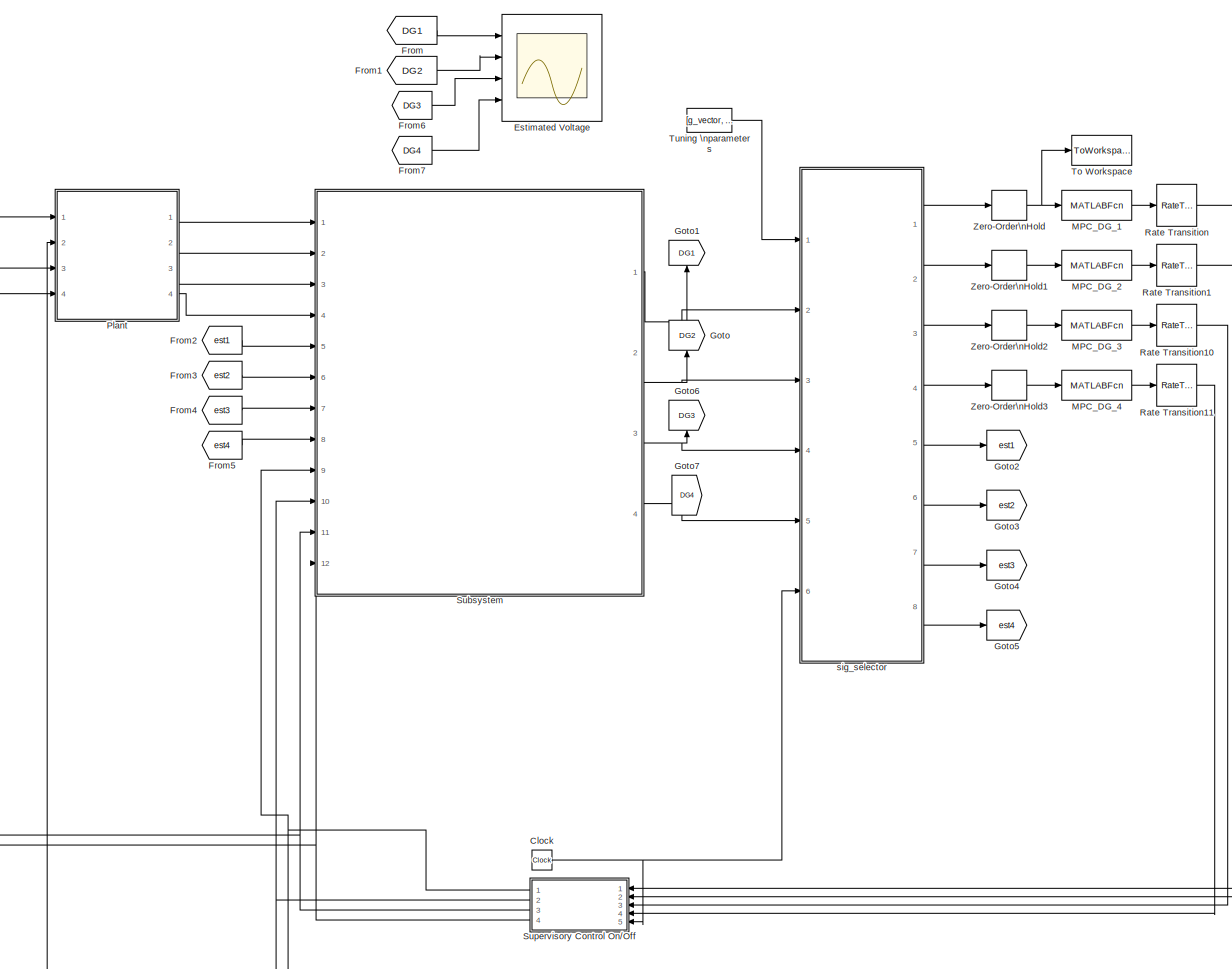
[diagram: root canvas - part 1/1, most of the canvas]
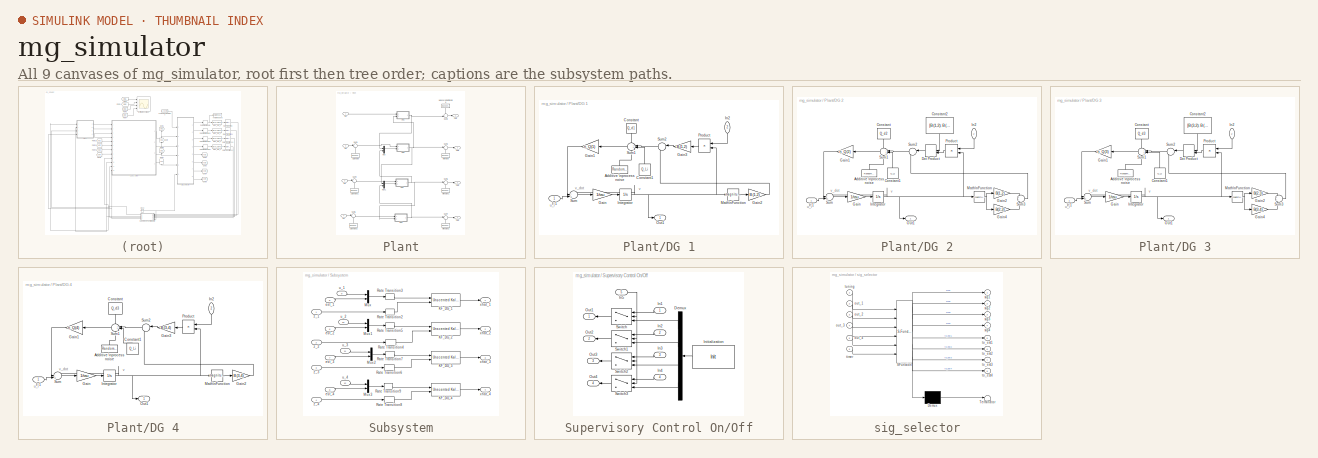
[diagram: thumbnail index - all 9 canvases of the model, root first then tree order]
MODEL mg_simulator
KIND model
CONFIG InitFcn = mg_simulator_init
BLOCK [Clock] Clock
  SID = 163
BLOCK [Scope] Estimated Voltage
  NumInputPorts = 4
  Ports = [4]
  SID = 727
  ScopeSpecificationString = Simulink.scopes.TimeScopeBlockCfg('CurrentConfiguration', extmgr.ConfigurationSet(extmgr.Configuration('Core','General UI',true),extmgr.Configuration('Core','Source UI',true),extmgr.Configuration('Sources','WiredSimulink',true,'DataLoggingVariableName','ScopeData1'),extmgr.Configuration('Visuals','Time Domain',true,'SerializedDisplays',{struct('MinYLimReal','-8.45888','MaxYLimReal','666.23312','YL...<+1493ch>
BLOCK [From] From
  GotoTag = DG1
  SID = 470
BLOCK [From] From1
  GotoTag = DG2
  SID = 471
BLOCK [From] From2
  GotoTag = est1
  SID = 483
BLOCK [From] From3
  GotoTag = est2
  SID = 485
BLOCK [From] From4
  GotoTag = est3
  SID = 673
BLOCK [From] From5
  GotoTag = est4
  SID = 674
BLOCK [From] From6
  GotoTag = DG3
  SID = 728
BLOCK [From] From7
  GotoTag = DG4
  SID = 729
BLOCK [Goto] Goto
  GotoTag = DG2
  SID = 466
BLOCK [Goto] Goto1
  GotoTag = DG1
  SID = 467
BLOCK [Goto] Goto2
  GotoTag = est1
  SID = 481
BLOCK [Goto] Goto3
  GotoTag = est2
  SID = 482
BLOCK [Goto] Goto4
  GotoTag = est3
  SID = 682
BLOCK [Goto] Goto5
  GotoTag = est4
  SID = 683
BLOCK [Goto] Goto6
  GotoTag = DG3
  SID = 725
BLOCK [Goto] Goto7
  GotoTag = DG4
  SID = 726
BLOCK [MATLABFcn] MPC_DG_1
  MATLABFcn = mpc_run_nodewise_mdl_fast(u(1:2)',u(3),u(4),u(5),u(6),u(7),u(8),u(9),u(10),u(11),u(12),u(13),u(14),u(15))
  Ports = [1, 1]
  SID = 201
  SampleTime = Ts
BLOCK [MATLABFcn] MPC_DG_2
  MATLABFcn = mpc_run_nodewise_mdl_fast2(u(1:2)',u(3:4),u(5:6),u(7),u(8),u(9),u(10),u(11),u(12),u(13),u(14),u(15),u(16),u(17))
  Ports = [1, 1]
  SID = 227
  SampleTime = Ts
BLOCK [MATLABFcn] MPC_DG_3
  MATLABFcn = mpc_run_nodewise_mdl_fast3(u(1:2)',u(3:4),u(5:6),u(7),u(8),u(9),u(10),u(11),u(12),u(13),u(14),u(15),u(16),u(17))
  Ports = [1, 1]
  SID = 675
  SampleTime = Ts
BLOCK [MATLABFcn] MPC_DG_4
  MATLABFcn = mpc_run_nodewise_mdl_fast4(u(1:2)',u(3),u(4),u(5),u(6),u(7),u(8),u(9),u(10),u(11),u(12),u(13),u(14),u(15))
  Ports = [1, 1]
  SID = 678
  SampleTime = Ts
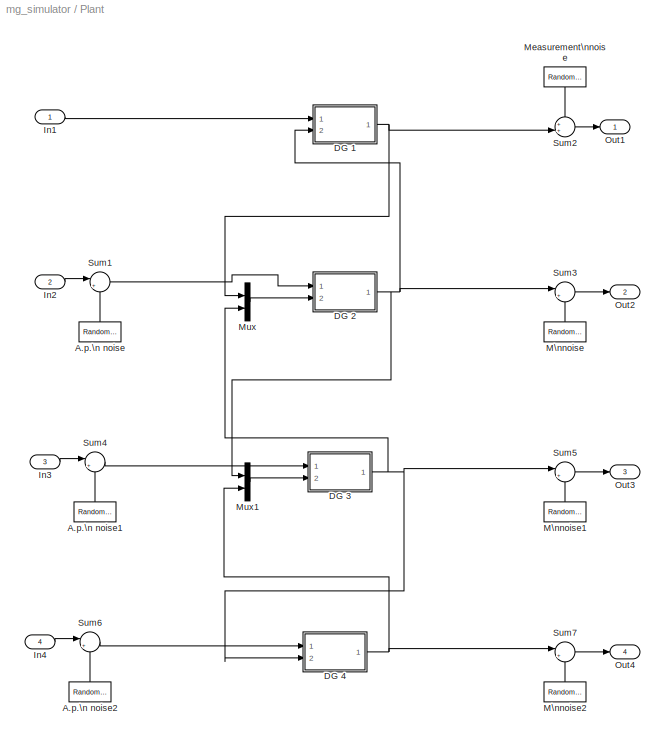
BLOCK [SubSystem] Plant
  Ports = [4, 4]
  RequestExecContextInheritance = off
  SID = 444
  Variant = off
BLOCK [RandomNumber] Plant/A.p.\n noise
  SID = 455
  SampleTime = Ts_noise
  Variance = p_noise(2)
BLOCK [RandomNumber] Plant/A.p.\n noise1
  SID = 517
  SampleTime = Ts_noise
  Variance = p_noise(2)
BLOCK [RandomNumber] Plant/A.p.\n noise2
  SID = 544
  SampleTime = Ts_noise
  Variance = p_noise(2)
BLOCK [SubSystem] Plant/DG 1
  Ports = [2, 1]
  RequestExecContextInheritance = off
  SID = 318
  Variant = off
BLOCK [RandomNumber] Plant/DG 1/Additive \nprocess noise
  SID = 452
  SampleTime = Ts_noise
  Variance = p_noise(i)
BLOCK [Constant] Plant/DG 1/Constant
  SID = 337
  Value = Q_d1
BLOCK [Constant] Plant/DG 1/Constant1
  SID = 402
  Value = Q_Li
BLOCK [Gain] Plant/DG 1/Gain
  Gain = 1/tau
  OutDataTypeStr = Inherit: Inherit via internal rule
  ParamDataTypeStr = Inherit: Inherit via internal rule
  SID = 322
  SaturateOnIntegerOverflow = off
BLOCK [Gain] Plant/DG 1/Gain1
  Gain = n_Q(1)
  OutDataTypeStr = Inherit: Inherit via internal rule
  ParamDataTypeStr = Inherit: Inherit via internal rule
  SID = 327
  SaturateOnIntegerOverflow = off
BLOCK [Gain] Plant/DG 1/Gain2
  Gain = B(1,2)
  OutDataTypeStr = Inherit: Inherit via internal rule
  ParamDataTypeStr = Inherit: Inherit via internal rule
  SID = 334
  SaturateOnIntegerOverflow = off
BLOCK [Gain] Plant/DG 1/Gain3
  Gain = B(1,2)
  OutDataTypeStr = Inherit: Inherit via internal rule
  ParamDataTypeStr = Inherit: Inherit via internal rule
  SID = 352
  SaturateOnIntegerOverflow = off
BLOCK [Inport] Plant/DG 1/In1
  IconDisplay = Port number
  SID = 319
BLOCK [Inport] Plant/DG 1/In2
  IconDisplay = Port number
  Port = 2
  SID = 332
BLOCK [Integrator] Plant/DG 1/Integrator
  InitialCondition = Init(1)
  Ports = [1, 1]
  SID = 324
BLOCK [Math] Plant/DG 1/Math\nFunction
  Operator = magnitude^2
  Ports = [1, 1]
  SID = 333
BLOCK [Outport] Plant/DG 1/Out1
  IconDisplay = Port number
  SID = 320
BLOCK [Product] Plant/DG 1/Product
  InputSameDT = off
  OutDataTypeStr = Inherit: Inherit via internal rule
  Ports = [2, 1]
  RndMeth = Floor
  SID = 335
  SaturateOnIntegerOverflow = off
BLOCK [Sum] Plant/DG 1/Sum
  IconShape = round
  InputSameDT = off
  Inputs = --+|
  OutDataTypeStr = Inherit: Inherit via internal rule
  Ports = [3, 1]
  SID = 321
  SaturateOnIntegerOverflow = off
BLOCK [Sum] Plant/DG 1/Sum1
  IconShape = round
  InputSameDT = off
  Inputs = -+++
  OutDataTypeStr = Inherit: Inherit via internal rule
  Ports = [4, 1]
  SID = 336
  SaturateOnIntegerOverflow = off
BLOCK [Sum] Plant/DG 1/Sum2
  IconShape = round
  InputSameDT = off
  Inputs = |-+
  OutDataTypeStr = Inherit: Inherit via internal rule
  Ports = [2, 1]
  SID = 379
  SaturateOnIntegerOverflow = off
BLOCK [SubSystem] Plant/DG 2
  Ports = [2, 1]
  RequestExecContextInheritance = off
  SID = 575
  Variant = off
BLOCK [RandomNumber] Plant/DG 2/Additive \nprocess noise
  SID = 737
  SampleTime = Ts_noise
  Variance = p_noise(i)
BLOCK [Constant] Plant/DG 2/Constant
  SID = 578
  Value = Q_d2
BLOCK [Constant] Plant/DG 2/Constant1
  SID = 579
  Value = Q_Li
BLOCK [Constant] Plant/DG 2/Constant2
  SID = 731
  Value = [B(1,2); B(2,3)]
BLOCK [DotProduct] Plant/DG 2/Dot Product
  OutDataTypeStr = Inherit: Inherit via internal rule
  SID = 730
BLOCK [Gain] Plant/DG 2/Gain
  Gain = 1/tau
  OutDataTypeStr = Inherit: Inherit via internal rule
  ParamDataTypeStr = Inherit: Inherit via internal rule
  SID = 580
  SaturateOnIntegerOverflow = off
BLOCK [Gain] Plant/DG 2/Gain1
  Gain = n_Q(2)
  OutDataTypeStr = Inherit: Inherit via internal rule
  ParamDataTypeStr = Inherit: Inherit via internal rule
  SID = 581
  SaturateOnIntegerOverflow = off
BLOCK [Gain] Plant/DG 2/Gain2
  Gain = B(1,2)
  OutDataTypeStr = Inherit: Inherit via internal rule
  ParamDataTypeStr = Inherit: Inherit via internal rule
  SID = 582
  SaturateOnIntegerOverflow = off
BLOCK [Gain] Plant/DG 2/Gain4
  Gain = B(2,3)
  OutDataTypeStr = Inherit: Inherit via internal rule
  ParamDataTypeStr = Inherit: Inherit via internal rule
  SID = 584
  SaturateOnIntegerOverflow = off
BLOCK [Inport] Plant/DG 2/In1
  IconDisplay = Port number
  SID = 576
BLOCK [Inport] Plant/DG 2/In2
  IconDisplay = Port number
  Port = 2
  SID = 577
BLOCK [Integrator] Plant/DG 2/Integrator
  InitialCondition = Init(2)
  Ports = [1, 1]
  SID = 585
BLOCK [Math] Plant/DG 2/Math\nFunction
  Operator = magnitude^2
  Ports = [1, 1]
  SID = 586
BLOCK [Outport] Plant/DG 2/Out1
  IconDisplay = Port number
  SID = 592
BLOCK [Product] Plant/DG 2/Product
  InputSameDT = off
  OutDataTypeStr = Inherit: Inherit via internal rule
  Ports = [2, 1]
  RndMeth = Floor
  SID = 587
  SaturateOnIntegerOverflow = off
BLOCK [Sum] Plant/DG 2/Sum
  IconShape = round
  InputSameDT = off
  Inputs = --+|
  OutDataTypeStr = Inherit: Inherit via internal rule
  Ports = [3, 1]
  SID = 588
  SaturateOnIntegerOverflow = off
BLOCK [Sum] Plant/DG 2/Sum1
  IconShape = round
  InputSameDT = off
  Inputs = -+++
  OutDataTypeStr = Inherit: Inherit via internal rule
  Ports = [4, 1]
  SID = 589
  SaturateOnIntegerOverflow = off
BLOCK [Sum] Plant/DG 2/Sum2
  IconShape = round
  InputSameDT = off
  Inputs = |-+
  OutDataTypeStr = Inherit: Inherit via internal rule
  Ports = [2, 1]
  SID = 590
  SaturateOnIntegerOverflow = off
BLOCK [Sum] Plant/DG 2/Sum3
  IconShape = round
  InputSameDT = off
  OutDataTypeStr = Inherit: Inherit via internal rule
  Ports = [2, 1]
  SID = 591
  SaturateOnIntegerOverflow = off
BLOCK [SubSystem] Plant/DG 3
  Ports = [2, 1]
  RequestExecContextInheritance = off
  SID = 518
  Variant = off
BLOCK [RandomNumber] Plant/DG 3/Additive \nprocess noise
  SID = 738
  SampleTime = Ts_noise
  Variance = p_noise(i)
BLOCK [Constant] Plant/DG 3/Constant
  SID = 521
  Value = Q_d3
BLOCK [Constant] Plant/DG 3/Constant1
  SID = 522
  Value = Q_Li
BLOCK [Constant] Plant/DG 3/Constant2
  SID = 732
  Value = [B(3,2); B(3,4)]
BLOCK [DotProduct] Plant/DG 3/Dot Product
  OutDataTypeStr = Inherit: Inherit via internal rule
  SID = 733
BLOCK [Gain] Plant/DG 3/Gain
  Gain = 1/tau
  OutDataTypeStr = Inherit: Inherit via internal rule
  ParamDataTypeStr = Inherit: Inherit via internal rule
  SID = 523
  SaturateOnIntegerOverflow = off
BLOCK [Gain] Plant/DG 3/Gain1
  Gain = n_Q(3)
  OutDataTypeStr = Inherit: Inherit via internal rule
  ParamDataTypeStr = Inherit: Inherit via internal rule
  SID = 524
  SaturateOnIntegerOverflow = off
BLOCK [Gain] Plant/DG 3/Gain2
  Gain = B(2,3)
  OutDataTypeStr = Inherit: Inherit via internal rule
  ParamDataTypeStr = Inherit: Inherit via internal rule
  SID = 525
  SaturateOnIntegerOverflow = off
BLOCK [Gain] Plant/DG 3/Gain4
  Gain = B(3,4)
  OutDataTypeStr = Inherit: Inherit via internal rule
  ParamDataTypeStr = Inherit: Inherit via internal rule
  SID = 574
  SaturateOnIntegerOverflow = off
BLOCK [Inport] Plant/DG 3/In1
  IconDisplay = Port number
  SID = 519
BLOCK [Inport] Plant/DG 3/In2
  IconDisplay = Port number
  Port = 2
  SID = 520
BLOCK [Integrator] Plant/DG 3/Integrator
  InitialCondition = Init(2)
  Ports = [1, 1]
  SID = 527
BLOCK [Math] Plant/DG 3/Math\nFunction
  Operator = magnitude^2
  Ports = [1, 1]
  SID = 528
BLOCK [Outport] Plant/DG 3/Out1
  IconDisplay = Port number
  SID = 535
BLOCK [Product] Plant/DG 3/Product
  InputSameDT = off
  OutDataTypeStr = Inherit: Inherit via internal rule
  Ports = [2, 1]
  RndMeth = Floor
  SID = 529
  SaturateOnIntegerOverflow = off
BLOCK [Sum] Plant/DG 3/Sum
  IconShape = round
  InputSameDT = off
  Inputs = --+|
  OutDataTypeStr = Inherit: Inherit via internal rule
  Ports = [3, 1]
  SID = 532
  SaturateOnIntegerOverflow = off
BLOCK [Sum] Plant/DG 3/Sum1
  IconShape = round
  InputSameDT = off
  Inputs = -+++
  OutDataTypeStr = Inherit: Inherit via internal rule
  Ports = [4, 1]
  SID = 533
  SaturateOnIntegerOverflow = off
BLOCK [Sum] Plant/DG 3/Sum2
  IconShape = round
  InputSameDT = off
  Inputs = |-+
  OutDataTypeStr = Inherit: Inherit via internal rule
  Ports = [2, 1]
  SID = 534
  SaturateOnIntegerOverflow = off
BLOCK [Sum] Plant/DG 3/Sum3
  IconShape = round
  InputSameDT = off
  OutDataTypeStr = Inherit: Inherit via internal rule
  Ports = [2, 1]
  SID = 573
  SaturateOnIntegerOverflow = off
BLOCK [SubSystem] Plant/DG 4
  Ports = [2, 1]
  RequestExecContextInheritance = off
  SID = 545
  Variant = off
BLOCK [RandomNumber] Plant/DG 4/Additive \nprocess noise
  SID = 739
  SampleTime = Ts_noise
  Variance = p_noise(i)
BLOCK [Constant] Plant/DG 4/Constant
  SID = 548
  Value = Q_d3
BLOCK [Constant] Plant/DG 4/Constant1
  SID = 549
  Value = Q_Li
BLOCK [Gain] Plant/DG 4/Gain
  Gain = 1/tau
  OutDataTypeStr = Inherit: Inherit via internal rule
  ParamDataTypeStr = Inherit: Inherit via internal rule
  SID = 550
  SaturateOnIntegerOverflow = off
BLOCK [Gain] Plant/DG 4/Gain1
  Gain = n_Q(4)
  OutDataTypeStr = Inherit: Inherit via internal rule
  ParamDataTypeStr = Inherit: Inherit via internal rule
  SID = 551
  SaturateOnIntegerOverflow = off
BLOCK [Gain] Plant/DG 4/Gain2
  Gain = B(3,4)
  OutDataTypeStr = Inherit: Inherit via internal rule
  ParamDataTypeStr = Inherit: Inherit via internal rule
  SID = 552
  SaturateOnIntegerOverflow = off
BLOCK [Gain] Plant/DG 4/Gain3
  Gain = B(3,4)
  Multiplication = Matrix(K*u)
  OutDataTypeStr = Inherit: Inherit via internal rule
  ParamDataTypeStr = Inherit: Inherit via internal rule
  SID = 553
  SaturateOnIntegerOverflow = off
BLOCK [Inport] Plant/DG 4/In1
  IconDisplay = Port number
  SID = 546
BLOCK [Inport] Plant/DG 4/In2
  IconDisplay = Port number
  Port = 2
  SID = 547
BLOCK [Integrator] Plant/DG 4/Integrator
  InitialCondition = Init(2)
  Ports = [1, 1]
  SID = 554
BLOCK [Math] Plant/DG 4/Math\nFunction
  Operator = magnitude^2
  Ports = [1, 1]
  SID = 555
BLOCK [Outport] Plant/DG 4/Out1
  IconDisplay = Port number
  SID = 562
BLOCK [Product] Plant/DG 4/Product
  InputSameDT = off
  OutDataTypeStr = Inherit: Inherit via internal rule
  Ports = [2, 1]
  RndMeth = Floor
  SID = 556
  SaturateOnIntegerOverflow = off
BLOCK [Sum] Plant/DG 4/Sum
  IconShape = round
  InputSameDT = off
  Inputs = --+|
  OutDataTypeStr = Inherit: Inherit via internal rule
  Ports = [3, 1]
  SID = 559
  SaturateOnIntegerOverflow = off
BLOCK [Sum] Plant/DG 4/Sum1
  IconShape = round
  InputSameDT = off
  Inputs = -+++
  OutDataTypeStr = Inherit: Inherit via internal rule
  Ports = [4, 1]
  SID = 560
  SaturateOnIntegerOverflow = off
BLOCK [Sum] Plant/DG 4/Sum2
  IconShape = round
  InputSameDT = off
  Inputs = |-+
  OutDataTypeStr = Inherit: Inherit via internal rule
  Ports = [2, 1]
  SID = 561
  SaturateOnIntegerOverflow = off
BLOCK [Inport] Plant/In1
  IconDisplay = Port number
  SID = 445
BLOCK [Inport] Plant/In2
  IconDisplay = Port number
  Port = 2
  SID = 446
BLOCK [Inport] Plant/In3
  IconDisplay = Port number
  Port = 3
  SID = 516
BLOCK [Inport] Plant/In4
  IconDisplay = Port number
  Port = 4
  SID = 543
BLOCK [RandomNumber] Plant/M\nnoise
  SID = 462
  SampleTime = Ts_noise
  Variance = w_noise(2)
BLOCK [RandomNumber] Plant/M\nnoise1
  SID = 539
  SampleTime = Ts_noise
  Variance = w_noise(2)
BLOCK [RandomNumber] Plant/M\nnoise2
  SID = 566
  SampleTime = Ts_noise
  Variance = w_noise(2)
BLOCK [RandomNumber] Plant/Measurement\nnoise
  SID = 461
  SampleTime = Ts_noise
  Variance = w_noise(2)
BLOCK [Mux] Plant/Mux
  DisplayOption = bar
  Inputs = 2
  Ports = [2, 1]
  SID = 571
BLOCK [Mux] Plant/Mux1
  DisplayOption = bar
  Inputs = 2
  Ports = [2, 1]
  SID = 572
BLOCK [Outport] Plant/Out1
  IconDisplay = Port number
  SID = 447
BLOCK [Outport] Plant/Out2
  IconDisplay = Port number
  Port = 2
  SID = 448
BLOCK [Outport] Plant/Out3
  IconDisplay = Port number
  Port = 3
  SID = 542
BLOCK [Outport] Plant/Out4
  IconDisplay = Port number
  Port = 4
  SID = 569
BLOCK [Sum] Plant/Sum1
  IconShape = round
  InputSameDT = off
  Inputs = |++
  OutDataTypeStr = Inherit: Inherit via internal rule
  Ports = [2, 1]
  SID = 456
  SaturateOnIntegerOverflow = off
BLOCK [Sum] Plant/Sum2
  IconShape = round
  InputSameDT = off
  Inputs = ++|
  OutDataTypeStr = Inherit: Inherit via internal rule
  Ports = [2, 1]
  SID = 458
  SaturateOnIntegerOverflow = off
BLOCK [Sum] Plant/Sum3
  IconShape = round
  InputSameDT = off
  Inputs = |++
  OutDataTypeStr = Inherit: Inherit via internal rule
  Ports = [2, 1]
  SID = 460
  SaturateOnIntegerOverflow = off
BLOCK [Sum] Plant/Sum4
  IconShape = round
  InputSameDT = off
  Inputs = |++
  OutDataTypeStr = Inherit: Inherit via internal rule
  Ports = [2, 1]
  SID = 540
  SaturateOnIntegerOverflow = off
BLOCK [Sum] Plant/Sum5
  IconShape = round
  InputSameDT = off
  Inputs = |++
  OutDataTypeStr = Inherit: Inherit via internal rule
  Ports = [2, 1]
  SID = 541
  SaturateOnIntegerOverflow = off
BLOCK [Sum] Plant/Sum6
  IconShape = round
  InputSameDT = off
  Inputs = |++
  OutDataTypeStr = Inherit: Inherit via internal rule
  Ports = [2, 1]
  SID = 567
  SaturateOnIntegerOverflow = off
BLOCK [Sum] Plant/Sum7
  IconShape = round
  InputSameDT = off
  Inputs = |++
  OutDataTypeStr = Inherit: Inherit via internal rule
  Ports = [2, 1]
  SID = 568
  SaturateOnIntegerOverflow = off
BLOCK [RateTransition] Rate Transition
  OutPortSampleTime = Ts
  OutPortSampleTimeOpt = Inherit
  SID = 226
BLOCK [RateTransition] Rate Transition1
  OutPortSampleTime = Ts
  OutPortSampleTimeOpt = Inherit
  SID = 228
BLOCK [RateTransition] Rate Transition10
  OutPortSampleTime = Ts
  OutPortSampleTimeOpt = Inherit
  SID = 676
BLOCK [RateTransition] Rate Transition11
  OutPortSampleTime = Ts
  OutPortSampleTimeOpt = Inherit
  SID = 679
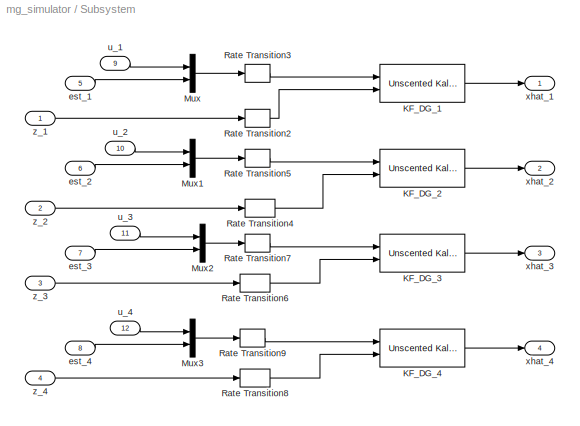
BLOCK [SubSystem] Subsystem
  Ports = [12, 4]
  RequestExecContextInheritance = off
  SID = 707
  Variant = off
BLOCK [Reference] Subsystem/KF_DG_1  REF=sharedTrackingLibrary/Unscented Kalman Filter
  Alpha = 1e-1
  Beta = 2
  DataType = double
  EnableMultirate = off
  HasAdditiveMeasurementNoise1 = Nonadditive
  HasAdditiveMeasurementNoise2 = Additive
  HasAdditiveMeasurementNoise3 = Additive
  HasAdditiveMeasurementNoise4 = Additive
  HasAdditiveMeasurementNoise5 = Additive
  HasAdditiveProcessNoise = Nonadditive
  HasMeasurementEnablePort1 = off
  HasMeasurementEnablePort2 = off
  HasMeasurementEnablePort3 = off
  HasMeasurementEnablePort4 = off
  HasMeasurementEnablePort5 = off
  HasMeasurementFcnExtraArgument1 = 0
  HasMeasurementFcnExtraArgument2 = 0
  HasMeasurementFcnExtraArgument3 = 0
  HasMeasurementFcnExtraArgument4 = 0
  HasMeasurementFcnExtraArgument5 = 0
  HasStateTransitionFcnExtraArgument = 1
  HasTimeVaryingMeasurementNoise1 = off
  HasTimeVaryingMeasurementNoise2 = off
  HasTimeVaryingMeasurementNoise3 = off
  HasTimeVaryingMeasurementNoise4 = off
  HasTimeVaryingMeasurementNoise5 = off
  HasTimeVaryingProcessNoise = off
  InitialState = v_ref
  InitialStateCovariance = p_noise_est(i)
  Kappa = 0
  MeasurementFcn1 = estimator_measurementFcn
  MeasurementFcn1SampleTime = 1
  MeasurementFcn2 = myMeasurementFcn
  MeasurementFcn2SampleTime = 1
  MeasurementFcn3 = myMeasurementFcn
  MeasurementFcn3SampleTime = 1
  MeasurementFcn4 = myMeasurementFcn
  MeasurementFcn4SampleTime = 1
  MeasurementFcn5 = myMeasurementFcn
  MeasurementFcn5SampleTime = 1
  MeasurementNoise1 = w_noise_est(i)
  MeasurementNoise2 = 1
  MeasurementNoise3 = 1
  MeasurementNoise4 = 1
  MeasurementNoise5 = 1
  NumberOfMeasurements = 1
  OutputStateCovariance = off
  Ports = [2, 1]
  ProcessNoise = p_noise_est(i)
  SID = 473
  SampleTime = Ts
  SourceBlock = sharedTrackingLibrary/Unscented Kalman Filter
  SourceProductBaseCode = CT
  SourceProductName = Control System Toolbox
  SourceType = Unscented Kalman Filter
  StateTransitionFcn = estimator_pflow_dynamics
  StateTransitionFcnSampleTime = 1
  UseCurrentEstimator = on
BLOCK [Reference] Subsystem/KF_DG_2  REF=sharedTrackingLibrary/Unscented Kalman Filter
  Alpha = 1e-1
  Beta = 2
  DataType = double
  EnableMultirate = off
  HasAdditiveMeasurementNoise1 = Nonadditive
  HasAdditiveMeasurementNoise2 = Additive
  HasAdditiveMeasurementNoise3 = Additive
  HasAdditiveMeasurementNoise4 = Additive
  HasAdditiveMeasurementNoise5 = Additive
  HasAdditiveProcessNoise = Nonadditive
  HasMeasurementEnablePort1 = off
  HasMeasurementEnablePort2 = off
  HasMeasurementEnablePort3 = off
  HasMeasurementEnablePort4 = off
  HasMeasurementEnablePort5 = off
  HasMeasurementFcnExtraArgument1 = 0
  HasMeasurementFcnExtraArgument2 = 0
  HasMeasurementFcnExtraArgument3 = 0
  HasMeasurementFcnExtraArgument4 = 0
  HasMeasurementFcnExtraArgument5 = 0
  HasStateTransitionFcnExtraArgument = 1
  HasTimeVaryingMeasurementNoise1 = off
  HasTimeVaryingMeasurementNoise2 = off
  HasTimeVaryingMeasurementNoise3 = off
  HasTimeVaryingMeasurementNoise4 = off
  HasTimeVaryingMeasurementNoise5 = off
  HasTimeVaryingProcessNoise = off
  InitialState = v_ref
  InitialStateCovariance = p_noise_est(i)
  Kappa = 0
  MeasurementFcn1 = estimator_measurementFcn
  MeasurementFcn1SampleTime = 1
  MeasurementFcn2 = myMeasurementFcn
  MeasurementFcn2SampleTime = 1
  MeasurementFcn3 = myMeasurementFcn
  MeasurementFcn3SampleTime = 1
  MeasurementFcn4 = myMeasurementFcn
  MeasurementFcn4SampleTime = 1
  MeasurementFcn5 = myMeasurementFcn
  MeasurementFcn5SampleTime = 1
  MeasurementNoise1 = w_noise_est(i)
  MeasurementNoise2 = 1
  MeasurementNoise3 = 1
  MeasurementNoise4 = 1
  MeasurementNoise5 = 1
  NumberOfMeasurements = 1
  OutputStateCovariance = off
  Ports = [2, 1]
  ProcessNoise = p_noise_est(i)
  SID = 734
  SampleTime = Ts
  SourceBlock = sharedTrackingLibrary/Unscented Kalman Filter
  SourceProductBaseCode = CT
  SourceProductName = Control System Toolbox
  SourceType = Unscented Kalman Filter
  StateTransitionFcn = estimator_pflow_dynamics
  StateTransitionFcnSampleTime = 1
  UseCurrentEstimator = on
BLOCK [Reference] Subsystem/KF_DG_3  REF=sharedTrackingLibrary/Unscented Kalman Filter
  Alpha = 1e-1
  Beta = 2
  DataType = double
  EnableMultirate = off
  HasAdditiveMeasurementNoise1 = Nonadditive
  HasAdditiveMeasurementNoise2 = Additive
  HasAdditiveMeasurementNoise3 = Additive
  HasAdditiveMeasurementNoise4 = Additive
  HasAdditiveMeasurementNoise5 = Additive
  HasAdditiveProcessNoise = Nonadditive
  HasMeasurementEnablePort1 = off
  HasMeasurementEnablePort2 = off
  HasMeasurementEnablePort3 = off
  HasMeasurementEnablePort4 = off
  HasMeasurementEnablePort5 = off
  HasMeasurementFcnExtraArgument1 = 0
  HasMeasurementFcnExtraArgument2 = 0
  HasMeasurementFcnExtraArgument3 = 0
  HasMeasurementFcnExtraArgument4 = 0
  HasMeasurementFcnExtraArgument5 = 0
  HasStateTransitionFcnExtraArgument = 1
  HasTimeVaryingMeasurementNoise1 = off
  HasTimeVaryingMeasurementNoise2 = off
  HasTimeVaryingMeasurementNoise3 = off
  HasTimeVaryingMeasurementNoise4 = off
  HasTimeVaryingMeasurementNoise5 = off
  HasTimeVaryingProcessNoise = off
  InitialState = v_ref
  InitialStateCovariance = p_noise_est(i)
  Kappa = 0
  MeasurementFcn1 = estimator_measurementFcn
  MeasurementFcn1SampleTime = 1
  MeasurementFcn2 = myMeasurementFcn
  MeasurementFcn2SampleTime = 1
  MeasurementFcn3 = myMeasurementFcn
  MeasurementFcn3SampleTime = 1
  MeasurementFcn4 = myMeasurementFcn
  MeasurementFcn4SampleTime = 1
  MeasurementFcn5 = myMeasurementFcn
  MeasurementFcn5SampleTime = 1
  MeasurementNoise1 = w_noise_est(i)
  MeasurementNoise2 = 1
  MeasurementNoise3 = 1
  MeasurementNoise4 = 1
  MeasurementNoise5 = 1
  NumberOfMeasurements = 1
  OutputStateCovariance = off
  Ports = [2, 1]
  ProcessNoise = p_noise_est(i)
  SID = 735
  SampleTime = Ts
  SourceBlock = sharedTrackingLibrary/Unscented Kalman Filter
  SourceProductBaseCode = CT
  SourceProductName = Control System Toolbox
  SourceType = Unscented Kalman Filter
  StateTransitionFcn = estimator_pflow_dynamics
  StateTransitionFcnSampleTime = 1
  UseCurrentEstimator = on
BLOCK [Reference] Subsystem/KF_DG_4  REF=sharedTrackingLibrary/Unscented Kalman Filter
  Alpha = 1e-1
  Beta = 2
  DataType = double
  EnableMultirate = off
  HasAdditiveMeasurementNoise1 = Nonadditive
  HasAdditiveMeasurementNoise2 = Additive
  HasAdditiveMeasurementNoise3 = Additive
  HasAdditiveMeasurementNoise4 = Additive
  HasAdditiveMeasurementNoise5 = Additive
  HasAdditiveProcessNoise = Nonadditive
  HasMeasurementEnablePort1 = off
  HasMeasurementEnablePort2 = off
  HasMeasurementEnablePort3 = off
  HasMeasurementEnablePort4 = off
  HasMeasurementEnablePort5 = off
  HasMeasurementFcnExtraArgument1 = 0
  HasMeasurementFcnExtraArgument2 = 0
  HasMeasurementFcnExtraArgument3 = 0
  HasMeasurementFcnExtraArgument4 = 0
  HasMeasurementFcnExtraArgument5 = 0
  HasStateTransitionFcnExtraArgument = 1
  HasTimeVaryingMeasurementNoise1 = off
  HasTimeVaryingMeasurementNoise2 = off
  HasTimeVaryingMeasurementNoise3 = off
  HasTimeVaryingMeasurementNoise4 = off
  HasTimeVaryingMeasurementNoise5 = off
  HasTimeVaryingProcessNoise = off
  InitialState = v_ref
  InitialStateCovariance = p_noise_est(i)
  Kappa = 0
  MeasurementFcn1 = estimator_measurementFcn
  MeasurementFcn1SampleTime = 1
  MeasurementFcn2 = myMeasurementFcn
  MeasurementFcn2SampleTime = 1
  MeasurementFcn3 = myMeasurementFcn
  MeasurementFcn3SampleTime = 1
  MeasurementFcn4 = myMeasurementFcn
  MeasurementFcn4SampleTime = 1
  MeasurementFcn5 = myMeasurementFcn
  MeasurementFcn5SampleTime = 1
  MeasurementNoise1 = w_noise_est(i)
  MeasurementNoise2 = 1
  MeasurementNoise3 = 1
  MeasurementNoise4 = 1
  MeasurementNoise5 = 1
  NumberOfMeasurements = 1
  OutputStateCovariance = off
  Ports = [2, 1]
  ProcessNoise = p_noise_est(i)
  SID = 736
  SampleTime = Ts
  SourceBlock = sharedTrackingLibrary/Unscented Kalman Filter
  SourceProductBaseCode = CT
  SourceProductName = Control System Toolbox
  SourceType = Unscented Kalman Filter
  StateTransitionFcn = estimator_pflow_dynamics
  StateTransitionFcnSampleTime = 1
  UseCurrentEstimator = on
BLOCK [Mux] Subsystem/Mux
  DisplayOption = bar
  Inputs = 2
  Ports = [2, 1]
  SID = 475
BLOCK [Mux] Subsystem/Mux1
  DisplayOption = bar
  Inputs = 2
  Ports = [2, 1]
  SID = 478
BLOCK [Mux] Subsystem/Mux2
  DisplayOption = bar
  Inputs = 2
  Ports = [2, 1]
  SID = 665
BLOCK [Mux] Subsystem/Mux3
  DisplayOption = bar
  Inputs = 2
  Ports = [2, 1]
  SID = 669
BLOCK [RateTransition] Subsystem/Rate Transition2
  SID = 486
BLOCK [RateTransition] Subsystem/Rate Transition3
  SID = 487
BLOCK [RateTransition] Subsystem/Rate Transition4
  SID = 488
BLOCK [RateTransition] Subsystem/Rate Transition5
  SID = 489
BLOCK [RateTransition] Subsystem/Rate Transition6
  SID = 666
BLOCK [RateTransition] Subsystem/Rate Transition7
  SID = 667
BLOCK [RateTransition] Subsystem/Rate Transition8
  SID = 670
BLOCK [RateTransition] Subsystem/Rate Transition9
  SID = 671
BLOCK [Inport] Subsystem/est_1
  IconDisplay = Port number
  Port = 5
  SID = 712
BLOCK [Inport] Subsystem/est_2
  IconDisplay = Port number
  Port = 6
  SID = 713
BLOCK [Inport] Subsystem/est_3
  IconDisplay = Port number
  Port = 7
  SID = 714
BLOCK [Inport] Subsystem/est_4
  IconDisplay = Port number
  Port = 8
  SID = 715
BLOCK [Inport] Subsystem/u_1
  IconDisplay = Port number
  Port = 9
  SID = 716
BLOCK [Inport] Subsystem/u_2
  IconDisplay = Port number
  Port = 10
  SID = 717
BLOCK [Inport] Subsystem/u_3
  IconDisplay = Port number
  Port = 11
  SID = 718
BLOCK [Inport] Subsystem/u_4
  IconDisplay = Port number
  Port = 12
  SID = 719
BLOCK [Outport] Subsystem/xhat_1
  IconDisplay = Port number
  SID = 720
BLOCK [Outport] Subsystem/xhat_2
  IconDisplay = Port number
  Port = 2
  SID = 723
BLOCK [Outport] Subsystem/xhat_3
  IconDisplay = Port number
  Port = 3
  SID = 724
BLOCK [Outport] Subsystem/xhat_4
  IconDisplay = Port number
  Port = 4
  SID = 722
BLOCK [Inport] Subsystem/z_1
  IconDisplay = Port number
  SID = 708
BLOCK [Inport] Subsystem/z_2
  IconDisplay = Port number
  Port = 2
  SID = 709
BLOCK [Inport] Subsystem/z_3
  IconDisplay = Port number
  Port = 3
  SID = 710
BLOCK [Inport] Subsystem/z_4
  IconDisplay = Port number
  Port = 4
  SID = 711
BLOCK [SubSystem] Supervisory Control On//Off
  Ports = [5, 4]
  RequestExecContextInheritance = off
  SID = 242
  Variant = off
BLOCK [Demux] Supervisory Control On//Off/Demux
  DisplayOption = bar
  Ports = [1, 4]
  SID = 241
BLOCK [Inport] Supervisory Control On//Off/In1
  IconDisplay = Port number
  SID = 243
BLOCK [Inport] Supervisory Control On//Off/In2
  IconDisplay = Port number
  Port = 2
  SID = 244
BLOCK [Inport] Supervisory Control On//Off/In3
  IconDisplay = Port number
  Port = 3
  SID = 686
BLOCK [Inport] Supervisory Control On//Off/In4
  IconDisplay = Port number
  Port = 4
  SID = 687
BLOCK [Inport] Supervisory Control On//Off/In5
  IconDisplay = Port number
  Port = 5
  SID = 247
BLOCK [Constant] Supervisory Control On//Off/Initialization
  SID = 240
  Value = Init
BLOCK [Outport] Supervisory Control On//Off/Out1
  IconDisplay = Port number
  SID = 248
BLOCK [Outport] Supervisory Control On//Off/Out2
  IconDisplay = Port number
  Port = 2
  SID = 249
BLOCK [Outport] Supervisory Control On//Off/Out3
  IconDisplay = Port number
  Port = 3
  SID = 688
BLOCK [Outport] Supervisory Control On//Off/Out4
  IconDisplay = Port number
  Port = 4
  SID = 689
BLOCK [Switch] Supervisory Control On//Off/Switch
  InputSameDT = off
  SID = 236
  SaturateOnIntegerOverflow = off
  Threshold = Thresh
BLOCK [Switch] Supervisory Control On//Off/Switch1
  InputSameDT = off
  SID = 237
  SaturateOnIntegerOverflow = off
  Threshold = Thresh
BLOCK [Switch] Supervisory Control On//Off/Switch2
  InputSameDT = off
  SID = 684
  SaturateOnIntegerOverflow = off
  Threshold = Thresh
BLOCK [Switch] Supervisory Control On//Off/Switch3
  InputSameDT = off
  SID = 685
  SaturateOnIntegerOverflow = off
  Threshold = Thresh
BLOCK [ToWorkspace] To Workspace
  FixptAsFi = on
  MaxDataPoints = inf
  Ports = [1]
  SID = 490
  SampleTime = -1
  Save2DSignal = 3-D array (concatenate along third dimension)
  SaveFormat = Timeseries
  VariableName = simout
BLOCK [Constant] Tuning \nparameters
  SID = 15
  Value = [g_vector, N, v_ref, Ts, Q, R, Q_d1, W, Q_Li, n_Q]
BLOCK [ZeroOrderHold] Zero-Order\nHold
  SID = 224
  SampleTime = Ts
BLOCK [ZeroOrderHold] Zero-Order\nHold1
  SID = 229
  SampleTime = Ts
BLOCK [ZeroOrderHold] Zero-Order\nHold2
  SID = 677
  SampleTime = Ts
BLOCK [ZeroOrderHold] Zero-Order\nHold3
  SID = 680
  SampleTime = Ts
BLOCK [SubSystem] sig_selector
  ErrorFcn = Stateflow.Translate.translate
  PermitHierarchicalResolution = ExplicitOnly
  Ports = [6, 8]
  RequestExecContextInheritance = off
  SFBlockType = MATLAB Function
  SID = 200
  TreatAsAtomicUnit = on
  Variant = off
BLOCK [Demux] sig_selector/ Demux 
  Outputs = 1
  Ports = [1, 1]
  SID = 200::32
BLOCK [S-Function] sig_selector/ SFunction 
  EnableBusSupport = on
  FunctionName = sf_sfun
  PortCounts = [6 9]
  Ports = [6, 9]
  SFcnIsStateOwnerBlock = off
  SFunctionDeploymentMode = off
  SID = 200::31
  Tag = Stateflow S-Function mg_simulator 2
BLOCK [Terminator] sig_selector/ Terminator 
  SID = 200::33
BLOCK [Inport] sig_selector/out_1
  IconDisplay = Port number
  Port = 2
  SID = 200::23
BLOCK [Inport] sig_selector/out_2
  IconDisplay = Port number
  Port = 3
  SID = 200::24
BLOCK [Inport] sig_selector/out_3
  IconDisplay = Port number
  Port = 4
  SID = 200::45
BLOCK [Inport] sig_selector/out_4
  IconDisplay = Port number
  Port = 5
  SID = 200::46
BLOCK [Outport] sig_selector/sig1
  IconDisplay = Port number
  SID = 200::5
BLOCK [Outport] sig_selector/sig2
  IconDisplay = Port number
  Port = 2
  SID = 200::27
BLOCK [Outport] sig_selector/sig3
  IconDisplay = Port number
  Port = 3
  SID = 200::41
BLOCK [Outport] sig_selector/sig4
  IconDisplay = Port number
  Port = 4
  SID = 200::42
BLOCK [Inport] sig_selector/timer
  IconDisplay = Port number
  Port = 6
  SID = 200::30
BLOCK [Outport] sig_selector/to_est1
  IconDisplay = Port number
  Port = 5
  SID = 200::39
BLOCK [Outport] sig_selector/to_est2
  IconDisplay = Port number
  Port = 6
  SID = 200::40
BLOCK [Outport] sig_selector/to_est3
  IconDisplay = Port number
  Port = 7
  SID = 200::43
BLOCK [Outport] sig_selector/to_est4
  IconDisplay = Port number
  Port = 8
  SID = 200::44
BLOCK [Inport] sig_selector/tuning
  IconDisplay = Port number
  SID = 200::22
ANNOTATION Plant/DG 1: u_i
ANNOTATION Plant/DG 1: v
ANNOTATION Plant/DG 1: v_dot
ANNOTATION Plant/DG 2: u_i
ANNOTATION Plant/DG 2: v
ANNOTATION Plant/DG 2: v_dot
ANNOTATION Plant/DG 3: u_i
ANNOTATION Plant/DG 3: v
ANNOTATION Plant/DG 3: v_dot
ANNOTATION Plant/DG 4: u_i
ANNOTATION Plant/DG 4: v
ANNOTATION Plant/DG 4: v_dot
NET Clock:1 -> Supervisory Control On//Off:5, sig_selector:6
LINE From1:1 -> Estimated Voltage:2
LINE From2:1 -> Subsystem:5
LINE From3:1 -> Subsystem:6
LINE From4:1 -> Subsystem:7
LINE From5:1 -> Subsystem:8
LINE From6:1 -> Estimated Voltage:3
LINE From7:1 -> Estimated Voltage:4
LINE From:1 -> Estimated Voltage:1
LINE MPC_DG_1:1 -> Rate Transition:1
LINE MPC_DG_2:1 -> Rate Transition1:1
LINE MPC_DG_3:1 -> Rate Transition10:1
LINE MPC_DG_4:1 -> Rate Transition11:1
LINE Plant/A.p.\n noise1:1 -> Plant/Sum4:2
LINE Plant/A.p.\n noise2:1 -> Plant/Sum6:2
LINE Plant/A.p.\n noise:1 -> Plant/Sum1:2
LINE Plant/DG 1/Additive \nprocess noise:1 -> Plant/DG 1/Sum1:4
LINE Plant/DG 1/Constant1:1 -> Plant/DG 1/Sum1:3
LINE Plant/DG 1/Constant:1 -> Plant/DG 1/Sum1:1
LINE Plant/DG 1/Gain1:1 -> Plant/DG 1/Sum:2
LINE Plant/DG 1/Gain2:1 -> Plant/DG 1/Sum2:2
LINE Plant/DG 1/Gain3:1 -> Plant/DG 1/Sum2:1
LINE Plant/DG 1/Gain:1 -> Plant/DG 1/Integrator:1
LINE Plant/DG 1/In1:1 -> Plant/DG 1/Sum:3
LINE Plant/DG 1/In2:1 -> Plant/DG 1/Product:1
NET Plant/DG 1/Integrator:1 -> Plant/DG 1/Math\nFunction:1, Plant/DG 1/Out1:1, Plant/DG 1/Product:2, Plant/DG 1/Sum:1
LINE Plant/DG 1/Math\nFunction:1 -> Plant/DG 1/Gain2:1
LINE Plant/DG 1/Product:1 -> Plant/DG 1/Gain3:1
LINE Plant/DG 1/Sum1:1 -> Plant/DG 1/Gain1:1
LINE Plant/DG 1/Sum2:1 -> Plant/DG 1/Sum1:2
LINE Plant/DG 1/Sum:1 -> Plant/DG 1/Gain:1
NET Plant/DG 1:1 -> Plant/Mux:1, Plant/Sum2:2
LINE Plant/DG 2/Additive \nprocess noise:1 -> Plant/DG 2/Sum1:4
LINE Plant/DG 2/Constant1:1 -> Plant/DG 2/Sum1:3
LINE Plant/DG 2/Constant2:1 -> Plant/DG 2/Dot Product:1
LINE Plant/DG 2/Constant:1 -> Plant/DG 2/Sum1:1
LINE Plant/DG 2/Dot Product:1 -> Plant/DG 2/Sum2:1
LINE Plant/DG 2/Gain1:1 -> Plant/DG 2/Sum:2
LINE Plant/DG 2/Gain2:1 -> Plant/DG 2/Sum3:1
LINE Plant/DG 2/Gain4:1 -> Plant/DG 2/Sum3:2
LINE Plant/DG 2/Gain:1 -> Plant/DG 2/Integrator:1
LINE Plant/DG 2/In1:1 -> Plant/DG 2/Sum:3
LINE Plant/DG 2/In2:1 -> Plant/DG 2/Product:1
NET Plant/DG 2/Integrator:1 -> Plant/DG 2/Math\nFunction:1, Plant/DG 2/Out1:1, Plant/DG 2/Product:2, Plant/DG 2/Sum:1
NET Plant/DG 2/Math\nFunction:1 -> Plant/DG 2/Gain2:1, Plant/DG 2/Gain4:1
LINE Plant/DG 2/Product:1 -> Plant/DG 2/Dot Product:2
LINE Plant/DG 2/Sum1:1 -> Plant/DG 2/Gain1:1
LINE Plant/DG 2/Sum2:1 -> Plant/DG 2/Sum1:2
LINE Plant/DG 2/Sum3:1 -> Plant/DG 2/Sum2:2
LINE Plant/DG 2/Sum:1 -> Plant/DG 2/Gain:1
NET Plant/DG 2:1 -> Plant/DG 1:2, Plant/Mux1:1, Plant/Sum3:1
LINE Plant/DG 3/Additive \nprocess noise:1 -> Plant/DG 3/Sum1:4
LINE Plant/DG 3/Constant1:1 -> Plant/DG 3/Sum1:3
LINE Plant/DG 3/Constant2:1 -> Plant/DG 3/Dot Product:1
LINE Plant/DG 3/Constant:1 -> Plant/DG 3/Sum1:1
LINE Plant/DG 3/Dot Product:1 -> Plant/DG 3/Sum2:1
LINE Plant/DG 3/Gain1:1 -> Plant/DG 3/Sum:2
LINE Plant/DG 3/Gain2:1 -> Plant/DG 3/Sum3:1
LINE Plant/DG 3/Gain4:1 -> Plant/DG 3/Sum3:2
LINE Plant/DG 3/Gain:1 -> Plant/DG 3/Integrator:1
LINE Plant/DG 3/In1:1 -> Plant/DG 3/Sum:3
LINE Plant/DG 3/In2:1 -> Plant/DG 3/Product:1
NET Plant/DG 3/Integrator:1 -> Plant/DG 3/Math\nFunction:1, Plant/DG 3/Out1:1, Plant/DG 3/Product:2, Plant/DG 3/Sum:1
NET Plant/DG 3/Math\nFunction:1 -> Plant/DG 3/Gain2:1, Plant/DG 3/Gain4:1
LINE Plant/DG 3/Product:1 -> Plant/DG 3/Dot Product:2
LINE Plant/DG 3/Sum1:1 -> Plant/DG 3/Gain1:1
LINE Plant/DG 3/Sum2:1 -> Plant/DG 3/Sum1:2
LINE Plant/DG 3/Sum3:1 -> Plant/DG 3/Sum2:2
LINE Plant/DG 3/Sum:1 -> Plant/DG 3/Gain:1
NET Plant/DG 3:1 -> Plant/DG 4:2, Plant/Mux:2, Plant/Sum5:1
LINE Plant/DG 4/Additive \nprocess noise:1 -> Plant/DG 4/Sum1:4
LINE Plant/DG 4/Constant1:1 -> Plant/DG 4/Sum1:3
LINE Plant/DG 4/Constant:1 -> Plant/DG 4/Sum1:1
LINE Plant/DG 4/Gain1:1 -> Plant/DG 4/Sum:2
LINE Plant/DG 4/Gain2:1 -> Plant/DG 4/Sum2:2
LINE Plant/DG 4/Gain3:1 -> Plant/DG 4/Sum2:1
LINE Plant/DG 4/Gain:1 -> Plant/DG 4/Integrator:1
LINE Plant/DG 4/In1:1 -> Plant/DG 4/Sum:3
LINE Plant/DG 4/In2:1 -> Plant/DG 4/Product:1
NET Plant/DG 4/Integrator:1 -> Plant/DG 4/Math\nFunction:1, Plant/DG 4/Out1:1, Plant/DG 4/Product:2, Plant/DG 4/Sum:1
LINE Plant/DG 4/Math\nFunction:1 -> Plant/DG 4/Gain2:1
LINE Plant/DG 4/Product:1 -> Plant/DG 4/Gain3:1
LINE Plant/DG 4/Sum1:1 -> Plant/DG 4/Gain1:1
LINE Plant/DG 4/Sum2:1 -> Plant/DG 4/Sum1:2
LINE Plant/DG 4/Sum:1 -> Plant/DG 4/Gain:1
NET Plant/DG 4:1 -> Plant/Mux1:2, Plant/Sum7:1
LINE Plant/In1:1 -> Plant/DG 1:1
LINE Plant/In2:1 -> Plant/Sum1:1
LINE Plant/In3:1 -> Plant/Sum4:1
LINE Plant/In4:1 -> Plant/Sum6:1
LINE Plant/M\nnoise1:1 -> Plant/Sum5:2
LINE Plant/M\nnoise2:1 -> Plant/Sum7:2
LINE Plant/M\nnoise:1 -> Plant/Sum3:2
LINE Plant/Measurement\nnoise:1 -> Plant/Sum2:1
LINE Plant/Mux1:1 -> Plant/DG 3:2
LINE Plant/Mux:1 -> Plant/DG 2:2
LINE Plant/Sum1:1 -> Plant/DG 2:1
LINE Plant/Sum2:1 -> Plant/Out1:1
LINE Plant/Sum3:1 -> Plant/Out2:1
LINE Plant/Sum4:1 -> Plant/DG 3:1
LINE Plant/Sum5:1 -> Plant/Out3:1
LINE Plant/Sum6:1 -> Plant/DG 4:1
LINE Plant/Sum7:1 -> Plant/Out4:1
LINE Plant:1 -> Subsystem:1
LINE Plant:2 -> Subsystem:2
LINE Plant:3 -> Subsystem:3
LINE Plant:4 -> Subsystem:4
LINE Rate Transition10:1 -> Supervisory Control On//Off:3
LINE Rate Transition11:1 -> Supervisory Control On//Off:4
LINE Rate Transition1:1 -> Supervisory Control On//Off:2
LINE Rate Transition:1 -> Supervisory Control On//Off:1
LINE Subsystem/KF_DG_1:1 -> Subsystem/xhat_1:1
LINE Subsystem/KF_DG_2:1 -> Subsystem/xhat_2:1
LINE Subsystem/KF_DG_3:1 -> Subsystem/xhat_3:1
LINE Subsystem/KF_DG_4:1 -> Subsystem/xhat_4:1
LINE Subsystem/Mux1:1 -> Subsystem/Rate Transition5:1
LINE Subsystem/Mux2:1 -> Subsystem/Rate Transition7:1
LINE Subsystem/Mux3:1 -> Subsystem/Rate Transition9:1
LINE Subsystem/Mux:1 -> Subsystem/Rate Transition3:1
LINE Subsystem/Rate Transition2:1 -> Subsystem/KF_DG_1:2
LINE Subsystem/Rate Transition3:1 -> Subsystem/KF_DG_1:1
LINE Subsystem/Rate Transition4:1 -> Subsystem/KF_DG_2:2
LINE Subsystem/Rate Transition5:1 -> Subsystem/KF_DG_2:1
LINE Subsystem/Rate Transition6:1 -> Subsystem/KF_DG_3:2
LINE Subsystem/Rate Transition7:1 -> Subsystem/KF_DG_3:1
LINE Subsystem/Rate Transition8:1 -> Subsystem/KF_DG_4:2
LINE Subsystem/Rate Transition9:1 -> Subsystem/KF_DG_4:1
LINE Subsystem/est_1:1 -> Subsystem/Mux:2
LINE Subsystem/est_2:1 -> Subsystem/Mux1:2
LINE Subsystem/est_3:1 -> Subsystem/Mux2:2
LINE Subsystem/est_4:1 -> Subsystem/Mux3:2
LINE Subsystem/u_1:1 -> Subsystem/Mux:1
LINE Subsystem/u_2:1 -> Subsystem/Mux1:1
LINE Subsystem/u_3:1 -> Subsystem/Mux2:1
LINE Subsystem/u_4:1 -> Subsystem/Mux3:1
LINE Subsystem/z_1:1 -> Subsystem/Rate Transition2:1
LINE Subsystem/z_2:1 -> Subsystem/Rate Transition4:1
LINE Subsystem/z_3:1 -> Subsystem/Rate Transition6:1
LINE Subsystem/z_4:1 -> Subsystem/Rate Transition8:1
NET Subsystem:1 -> Goto1:1, sig_selector:2
NET Subsystem:2 -> Goto:1, sig_selector:3
NET Subsystem:3 -> Goto6:1, sig_selector:4
NET Subsystem:4 -> Goto7:1, sig_selector:5
LINE Supervisory Control On//Off/Demux:1 -> Supervisory Control On//Off/Switch:3
LINE Supervisory Control On//Off/Demux:2 -> Supervisory Control On//Off/Switch1:3
LINE Supervisory Control On//Off/Demux:3 -> Supervisory Control On//Off/Switch2:3
LINE Supervisory Control On//Off/Demux:4 -> Supervisory Control On//Off/Switch3:3
LINE Supervisory Control On//Off/In1:1 -> Supervisory Control On//Off/Switch:1
LINE Supervisory Control On//Off/In2:1 -> Supervisory Control On//Off/Switch1:1
LINE Supervisory Control On//Off/In3:1 -> Supervisory Control On//Off/Switch2:1
LINE Supervisory Control On//Off/In4:1 -> Supervisory Control On//Off/Switch3:1
NET Supervisory Control On//Off/In5:1 -> Supervisory Control On//Off/Switch1:2, Supervisory Control On//Off/Switch2:2, Supervisory Control On//Off/Switch3:2, Supervisory Control On//Off/Switch:2
LINE Supervisory Control On//Off/Initialization:1 -> Supervisory Control On//Off/Demux:1
LINE Supervisory Control On//Off/Switch1:1 -> Supervisory Control On//Off/Out2:1
LINE Supervisory Control On//Off/Switch2:1 -> Supervisory Control On//Off/Out3:1
LINE Supervisory Control On//Off/Switch3:1 -> Supervisory Control On//Off/Out4:1
LINE Supervisory Control On//Off/Switch:1 -> Supervisory Control On//Off/Out1:1
NET Supervisory Control On//Off:1 -> Plant:1, Subsystem:9
NET Supervisory Control On//Off:2 -> Plant:2, Subsystem:10
NET Supervisory Control On//Off:3 -> Plant:3, Subsystem:11
NET Supervisory Control On//Off:4 -> Plant:4, Subsystem:12
LINE Tuning \nparameters:1 -> sig_selector:1
LINE Zero-Order\nHold1:1 -> MPC_DG_2:1
LINE Zero-Order\nHold2:1 -> MPC_DG_3:1
LINE Zero-Order\nHold3:1 -> MPC_DG_4:1
NET Zero-Order\nHold:1 -> MPC_DG_1:1, To Workspace:1
LINE sig_selector/ Demux :1 -> sig_selector/ Terminator :1
LINE sig_selector/ SFunction :1 -> sig_selector/ Demux :1
LINE sig_selector/ SFunction :2 -> sig_selector/sig1:1
LINE sig_selector/ SFunction :3 -> sig_selector/sig2:1
LINE sig_selector/ SFunction :4 -> sig_selector/sig3:1
LINE sig_selector/ SFunction :5 -> sig_selector/sig4:1
LINE sig_selector/ SFunction :6 -> sig_selector/to_est1:1
LINE sig_selector/ SFunction :7 -> sig_selector/to_est2:1
LINE sig_selector/ SFunction :8 -> sig_selector/to_est3:1
LINE sig_selector/ SFunction :9 -> sig_selector/to_est4:1
LINE sig_selector/out_1:1 -> sig_selector/ SFunction :2
LINE sig_selector/out_2:1 -> sig_selector/ SFunction :3
LINE sig_selector/out_3:1 -> sig_selector/ SFunction :4
LINE sig_selector/out_4:1 -> sig_selector/ SFunction :5
LINE sig_selector/timer:1 -> sig_selector/ SFunction :6
LINE sig_selector/tuning:1 -> sig_selector/ SFunction :1
LINE sig_selector:1 -> Zero-Order\nHold:1
LINE sig_selector:2 -> Zero-Order\nHold1:1
LINE sig_selector:3 -> Zero-Order\nHold2:1
LINE sig_selector:4 -> Zero-Order\nHold3:1
LINE sig_selector:5 -> Goto2:1
LINE sig_selector:6 -> Goto3:1
LINE sig_selector:7 -> Goto4:1
LINE sig_selector:8 -> Goto5:1
note: NET lines group one-source signal fan-out (src -> all destinations, sorted); 1:1 wires keep LINE
CHART sig_selector states=1 transitions=1
  STATE_LABEL 'eML_blk_kernel()'
